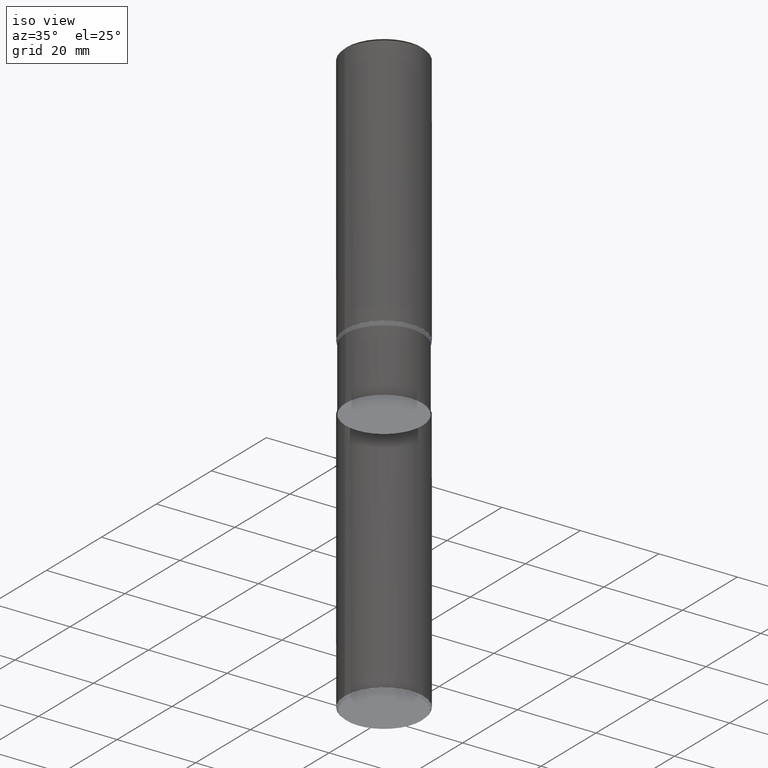
[diagram: clean part render]
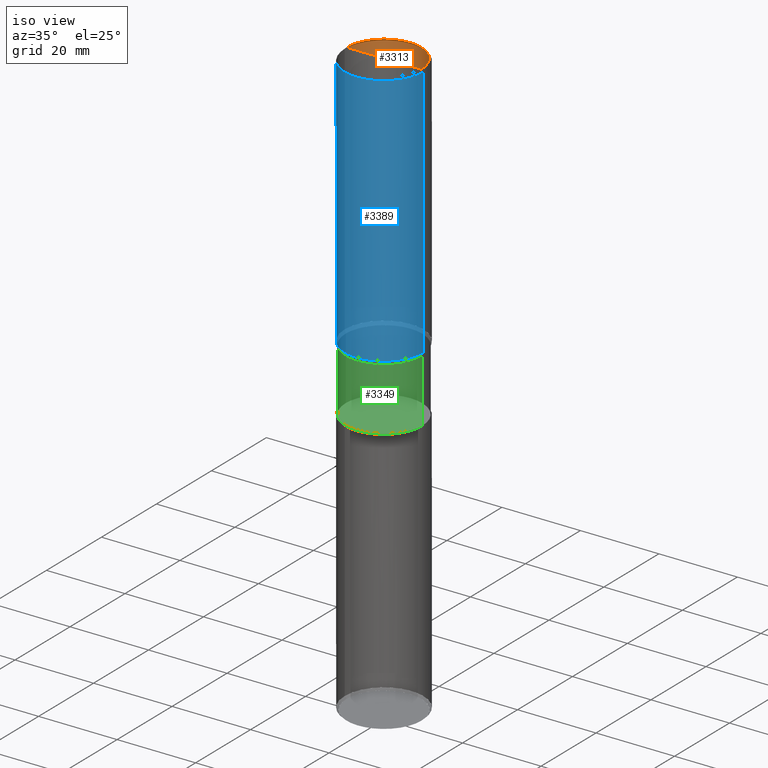
[diagram: same view with three faces highlighted in distinct colors, each labeled with its STEP entity id]
A machine part, iso view with three faces highlighted in distinct colors.
Their STEP definitions:

[orange] entity #3313 — the highlighted face is a freeform B-spline surface patch.
#3026=CARTESIAN_POINT('',(9.5,0.0,65.06699011));
#3027=CARTESIAN_POINT('',(9.5,9.5,65.06699011));
#3028=CARTESIAN_POINT('',(0.0,9.5,65.06699011));
#3029=CARTESIAN_POINT('',(-9.5,9.5,65.06699011));
#3030=CARTESIAN_POINT('',(-9.5,0.0,65.06699011));
#3031=CARTESIAN_POINT('',(0.0,0.0,65.06699011));
#3298=(
BOUNDED_SURFACE()
B_SPLINE_SURFACE(1,2,(
(#3026,#3027,#3028,#3029,#3030),
(#3031,#3031,#3031,#3031,#3031)
), .UNSPECIFIED.,.F.,.F.,.F.)
B_SPLINE_SURFACE_WITH_KNOTS((2,2),(3,2,3),(
0.0,1.0),(
0.0,0.5,1.0), .UNSPECIFIED.)
GEOMETRIC_REPRESENTATION_ITEM()
RATIONAL_B_SPLINE_SURFACE(((1.0,0.707106781187,1.0,0.707106781187,1.0),
(1.0,0.707106781187,1.0,0.707106781187,1.0)
))
REPRESENTATION_ITEM('')
SURFACE()
);
#3299=(
BOUNDED_CURVE()
B_SPLINE_CURVE(1,(#3031,#3026),.UNSPECIFIED.,.F.,.F.)
B_SPLINE_CURVE_WITH_KNOTS((2,2),
(0.0,1.0),.UNSPECIFIED.)
CURVE()
GEOMETRIC_REPRESENTATION_ITEM()
RATIONAL_B_SPLINE_CURVE((1.0,1.0))
REPRESENTATION_ITEM('')
);
#3300=(
BOUNDED_CURVE()
B_SPLINE_CURVE(2,(#3026,#3027,#3028,#3029,#3030),.UNSPECIFIED.,.F.,.F.)
B_SPLINE_CURVE_WITH_KNOTS((3,2,3),
(0.0,0.5,1.0),.UNSPECIFIED.)
CURVE()
GEOMETRIC_REPRESENTATION_ITEM()
RATIONAL_B_SPLINE_CURVE((1.0,0.707106781187,1.0,0.707106781187,1.0))
REPRESENTATION_ITEM('')
);
#3301=(
BOUNDED_CURVE()
B_SPLINE_CURVE(1,(#3030,#3031),.UNSPECIFIED.,.F.,.F.)
B_SPLINE_CURVE_WITH_KNOTS((2,2),
(0.0,1.0),.UNSPECIFIED.)
CURVE()
GEOMETRIC_REPRESENTATION_ITEM()
RATIONAL_B_SPLINE_CURVE((1.0,1.0))
REPRESENTATION_ITEM('')
);
#3302=VERTEX_POINT('',#3026);
#3303=VERTEX_POINT('',#3030);
#3304=VERTEX_POINT('',#3031);
#3305=EDGE_CURVE('',#3304,#3302,#3299,.T.);
#3306=EDGE_CURVE('',#3302,#3303,#3300,.T.);
#3307=EDGE_CURVE('',#3303,#3304,#3301,.T.);
#3308=ORIENTED_EDGE('',*,*,#3305,.T.);
#3309=ORIENTED_EDGE('',*,*,#3306,.T.);
#3310=ORIENTED_EDGE('',*,*,#3307,.T.);
#3311=EDGE_LOOP('',(#3308,#3309,#3310));
#3312=FACE_OUTER_BOUND('',#3311,.T.);
#3313=ADVANCED_FACE('',(#3312),#3298,.T.);

[blue] entity #3389 — the highlighted face is a freeform B-spline surface patch.
#3016=CARTESIAN_POINT('',(10.0,0.0,0.0));
#3020=CARTESIAN_POINT('',(-10.0,0.0,0.0));
#3021=CARTESIAN_POINT('',(10.0,0.0,64.56699011));
#3025=CARTESIAN_POINT('',(-10.0,0.0,64.56699011));
#3038=CARTESIAN_POINT('',(-10.0,-10.0,0.0));
#3039=CARTESIAN_POINT('',(0.0,-10.0,0.0));
#3040=CARTESIAN_POINT('',(10.0,-10.0,0.0));
#3041=CARTESIAN_POINT('',(-10.0,-10.0,64.56699011));
#3042=CARTESIAN_POINT('',(0.0,-10.0,64.56699011));
#3043=CARTESIAN_POINT('',(10.0,-10.0,64.56699011));
#3370=(
BOUNDED_SURFACE()
B_SPLINE_SURFACE(1,2,(
(#3020,#3038,#3039,#3040,#3016),
(#3025,#3041,#3042,#3043,#3021)
), .UNSPECIFIED.,.F.,.F.,.F.)
B_SPLINE_SURFACE_WITH_KNOTS((2,2),(3,2,3),(
0.0,1.0),(
0.0,0.5,1.0), .UNSPECIFIED.)
GEOMETRIC_REPRESENTATION_ITEM()
RATIONAL_B_SPLINE_SURFACE(((1.0,0.707106781187,1.0,0.707106781187,1.0),
(1.0,0.707106781187,1.0,0.707106781187,1.0)
))
REPRESENTATION_ITEM('')
SURFACE()
);
#3371=(
BOUNDED_CURVE()
B_SPLINE_CURVE(1,(#3025,#3020),.UNSPECIFIED.,.F.,.F.)
B_SPLINE_CURVE_WITH_KNOTS((2,2),
(0.0,1.0),.UNSPECIFIED.)
CURVE()
GEOMETRIC_REPRESENTATION_ITEM()
RATIONAL_B_SPLINE_CURVE((1.0,1.0))
REPRESENTATION_ITEM('')
);
#3372=(
BOUNDED_CURVE()
B_SPLINE_CURVE(2,(#3020,#3038,#3039,#3040,#3016),.UNSPECIFIED.,.F.,.F.)
B_SPLINE_CURVE_WITH_KNOTS((3,2,3),
(0.0,0.5,1.0),.UNSPECIFIED.)
CURVE()
GEOMETRIC_REPRESENTATION_ITEM()
RATIONAL_B_SPLINE_CURVE((1.0,0.707106781187,1.0,0.707106781187,1.0))
REPRESENTATION_ITEM('')
);
#3373=(
BOUNDED_CURVE()
B_SPLINE_CURVE(1,(#3016,#3021),.UNSPECIFIED.,.F.,.F.)
B_SPLINE_CURVE_WITH_KNOTS((2,2),
(0.0,1.0),.UNSPECIFIED.)
CURVE()
GEOMETRIC_REPRESENTATION_ITEM()
RATIONAL_B_SPLINE_CURVE((1.0,1.0))
REPRESENTATION_ITEM('')
);
#3374=(
BOUNDED_CURVE()
B_SPLINE_CURVE(2,(#3021,#3043,#3042,#3041,#3025),.UNSPECIFIED.,.F.,.F.)
B_SPLINE_CURVE_WITH_KNOTS((3,2,3),
(0.0,0.5,1.0),.UNSPECIFIED.)
CURVE()
GEOMETRIC_REPRESENTATION_ITEM()
RATIONAL_B_SPLINE_CURVE((1.0,0.707106781187,1.0,0.707106781187,1.0))
REPRESENTATION_ITEM('')
);
#3375=VERTEX_POINT('',#3016);
#3376=VERTEX_POINT('',#3020);
#3377=VERTEX_POINT('',#3021);
#3378=VERTEX_POINT('',#3025);
#3379=EDGE_CURVE('',#3378,#3376,#3371,.T.);
#3380=EDGE_CURVE('',#3376,#3375,#3372,.T.);
#3381=EDGE_CURVE('',#3375,#3377,#3373,.T.);
#3382=EDGE_CURVE('',#3377,#3378,#3374,.T.);
#3383=ORIENTED_EDGE('',*,*,#3379,.T.);
#3384=ORIENTED_EDGE('',*,*,#3380,.T.);
#3385=ORIENTED_EDGE('',*,*,#3381,.T.);
#3386=ORIENTED_EDGE('',*,*,#3382,.T.);
#3387=EDGE_LOOP('',(#3383,#3384,#3385,#3386));
#3388=FACE_OUTER_BOUND('',#3387,.T.);
#3389=ADVANCED_FACE('',(#3388),#3370,.T.);

[green] entity #3349 — the highlighted face is a freeform B-spline surface patch.
#3006=CARTESIAN_POINT('',(9.75,0.0,-16.93300989));
#3010=CARTESIAN_POINT('',(-9.75,0.0,-16.93300989));
#3011=CARTESIAN_POINT('',(9.75,0.0,-0.93300989));
#3015=CARTESIAN_POINT('',(-9.75,0.0,-0.93300989));
#3032=CARTESIAN_POINT('',(-9.75,-9.75,-16.93300989));
#3033=CARTESIAN_POINT('',(0.0,-9.75,-16.93300989));
#3034=CARTESIAN_POINT('',(9.75,-9.75,-16.93300989));
#3035=CARTESIAN_POINT('',(-9.75,-9.75,-0.93300989));
#3036=CARTESIAN_POINT('',(0.0,-9.75,-0.93300989));
#3037=CARTESIAN_POINT('',(9.75,-9.75,-0.93300989));
#3330=(
BOUNDED_SURFACE()
B_SPLINE_SURFACE(1,2,(
(#3010,#3032,#3033,#3034,#3006),
(#3015,#3035,#3036,#3037,#3011)
), .UNSPECIFIED.,.F.,.F.,.F.)
B_SPLINE_SURFACE_WITH_KNOTS((2,2),(3,2,3),(
0.0,1.0),(
0.0,0.5,1.0), .UNSPECIFIED.)
GEOMETRIC_REPRESENTATION_ITEM()
RATIONAL_B_SPLINE_SURFACE(((1.0,0.707106781187,1.0,0.707106781187,1.0),
(1.0,0.707106781187,1.0,0.707106781187,1.0)
))
REPRESENTATION_ITEM('')
SURFACE()
);
#3331=(
BOUNDED_CURVE()
B_SPLINE_CURVE(1,(#3015,#3010),.UNSPECIFIED.,.F.,.F.)
B_SPLINE_CURVE_WITH_KNOTS((2,2),
(0.0,1.0),.UNSPECIFIED.)
CURVE()
GEOMETRIC_REPRESENTATION_ITEM()
RATIONAL_B_SPLINE_CURVE((1.0,1.0))
REPRESENTATION_ITEM('')
);
#3332=(
BOUNDED_CURVE()
B_SPLINE_CURVE(2,(#3010,#3032,#3033,#3034,#3006),.UNSPECIFIED.,.F.,.F.)
B_SPLINE_CURVE_WITH_KNOTS((3,2,3),
(0.0,0.5,1.0),.UNSPECIFIED.)
CURVE()
GEOMETRIC_REPRESENTATION_ITEM()
RATIONAL_B_SPLINE_CURVE((1.0,0.707106781187,1.0,0.707106781187,1.0))
REPRESENTATION_ITEM('')
);
#3333=(
BOUNDED_CURVE()
B_SPLINE_CURVE(1,(#3006,#3011),.UNSPECIFIED.,.F.,.F.)
B_SPLINE_CURVE_WITH_KNOTS((2,2),
(0.0,1.0),.UNSPECIFIED.)
CURVE()
GEOMETRIC_REPRESENTATION_ITEM()
RATIONAL_B_SPLINE_CURVE((1.0,1.0))
REPRESENTATION_ITEM('')
);
#3334=(
BOUNDED_CURVE()
B_SPLINE_CURVE(2,(#3011,#3037,#3036,#3035,#3015),.UNSPECIFIED.,.F.,.F.)
B_SPLINE_CURVE_WITH_KNOTS((3,2,3),
(0.0,0.5,1.0),.UNSPECIFIED.)
CURVE()
GEOMETRIC_REPRESENTATION_ITEM()
RATIONAL_B_SPLINE_CURVE((1.0,0.707106781187,1.0,0.707106781187,1.0))
REPRESENTATION_ITEM('')
);
#3335=VERTEX_POINT('',#3006);
#3336=VERTEX_POINT('',#3010);
#3337=VERTEX_POINT('',#3011);
#3338=VERTEX_POINT('',#3015);
#3339=EDGE_CURVE('',#3338,#3336,#3331,.T.);
#3340=EDGE_CURVE('',#3336,#3335,#3332,.T.);
#3341=EDGE_CURVE('',#3335,#3337,#3333,.T.);
#3342=EDGE_CURVE('',#3337,#3338,#3334,.T.);
#3343=ORIENTED_EDGE('',*,*,#3339,.T.);
#3344=ORIENTED_EDGE('',*,*,#3340,.T.);
#3345=ORIENTED_EDGE('',*,*,#3341,.T.);
#3346=ORIENTED_EDGE('',*,*,#3342,.T.);
#3347=EDGE_LOOP('',(#3343,#3344,#3345,#3346));
#3348=FACE_OUTER_BOUND('',#3347,.T.);
#3349=ADVANCED_FACE('',(#3348),#3330,.T.);